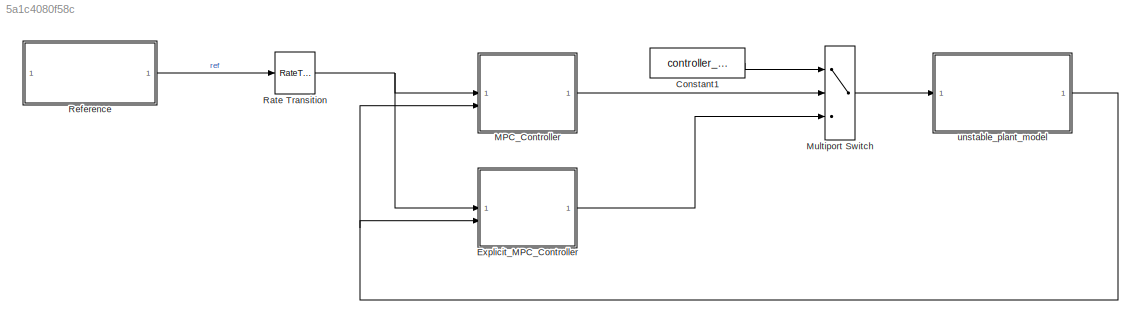
MODEL slx_5a1c4080f58c
KIND model
BLOCK [Constant] Constant1
  OutDataTypeStr = uint32
  Value = controller_sw
BLOCK [ModelReference] Explicit_MPC_Controller
  ModelNameDialog = Explicit_MPC_Controller
  ModelReferenceVersion = 8.0
BLOCK [ModelReference] MPC_Controller
  ModelNameDialog = Linear_MPC_Controller_for_DCmotor.slx
  ModelReferenceVersion = 9.0
BLOCK [MultiPortSwitch] Multiport Switch
  DiagnosticForDefault = None
  InputSameDT = off
  Inputs = 2
  SaturateOnIntegerOverflow = off
BLOCK [RateTransition] Rate Transition
  OutPortSampleTime = TimeStep
BLOCK [SubSystem] Reference
  ReferencedSubsystem = Reference_DCmotor
BLOCK [SubSystem] unstable_plant_model
  ReferencedSubsystem = IdealDCmotor_plant_model
LINE Constant1:1 -> Multiport Switch:1
LINE Explicit_MPC_Controller:1 -> Multiport Switch:3
LINE MPC_Controller:1 -> Multiport Switch:2
LINE Multiport Switch:1 -> unstable_plant_model:1
NET Rate Transition:1 -> Explicit_MPC_Controller:1, MPC_Controller:1
LINE Reference:1 -> Rate Transition:1
NET unstable_plant_model:1 -> Explicit_MPC_Controller:2, MPC_Controller:2
note: NET lines group one-source signal fan-out (src -> all destinations, sorted); 1:1 wires keep LINE
